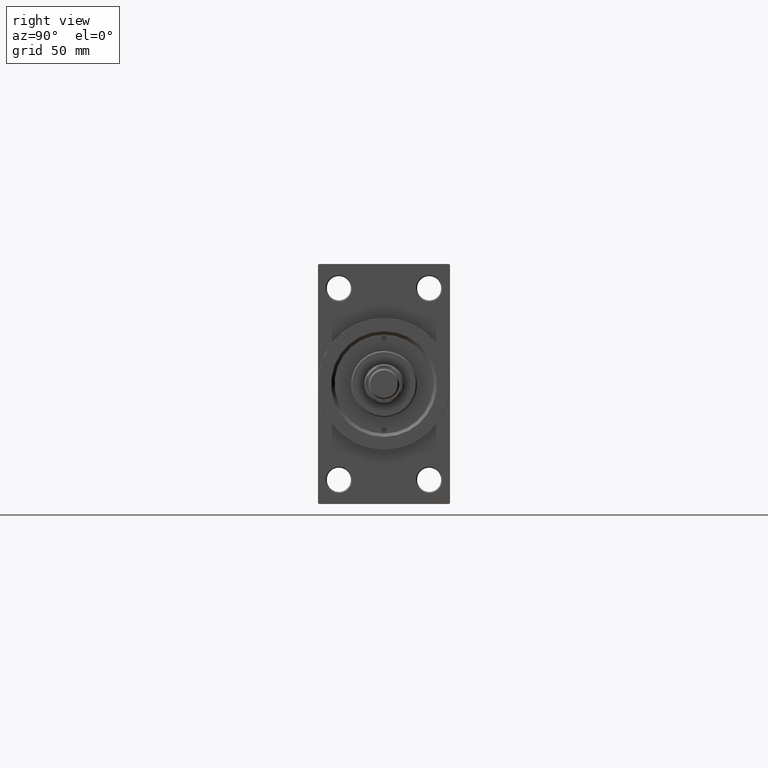
[diagram: clean part render]
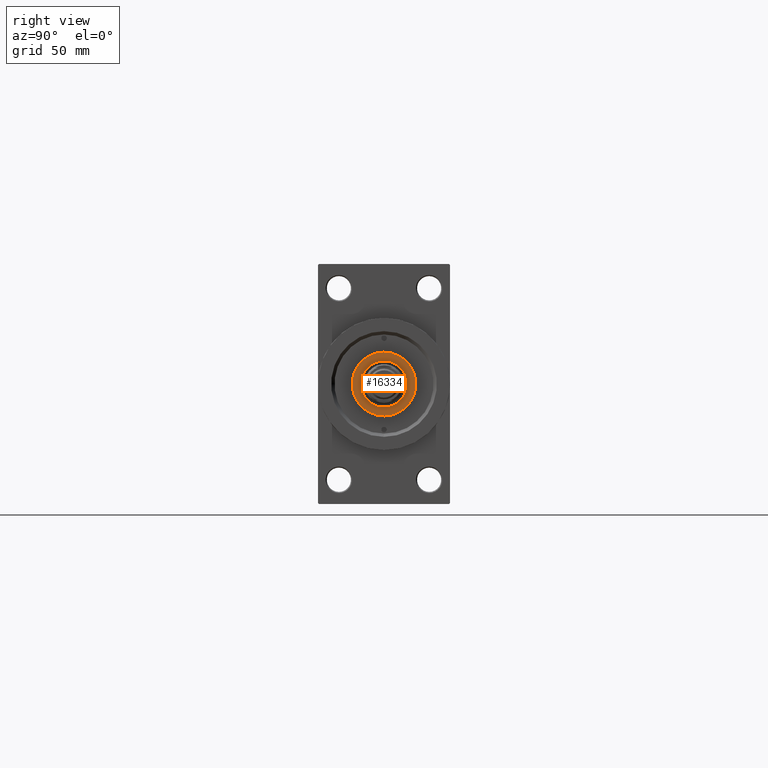
[diagram: same view with one face highlighted and labeled with its STEP entity id]
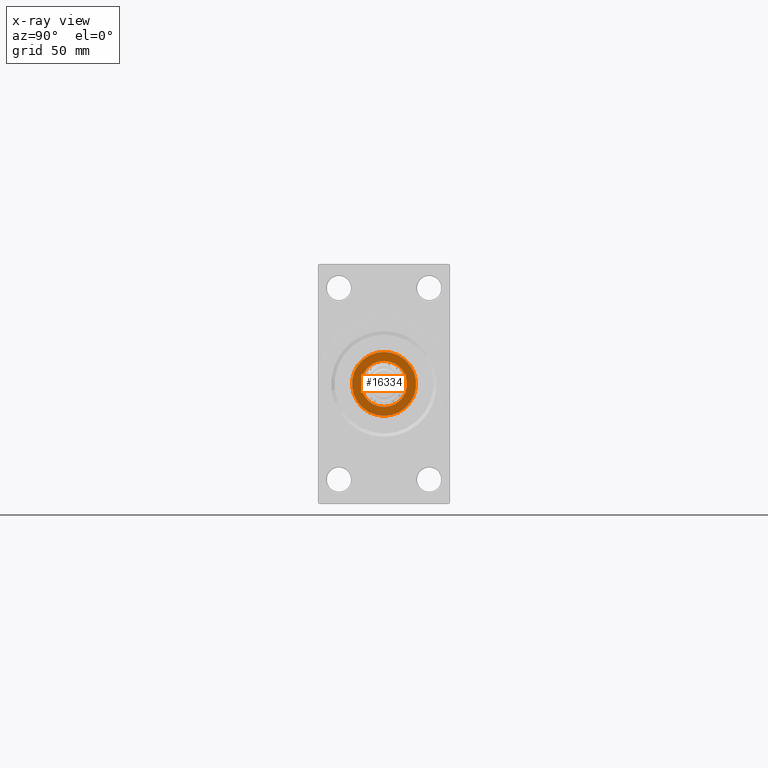
[diagram: x-ray of the same camera — body ghosted, the highlighted face saturated]
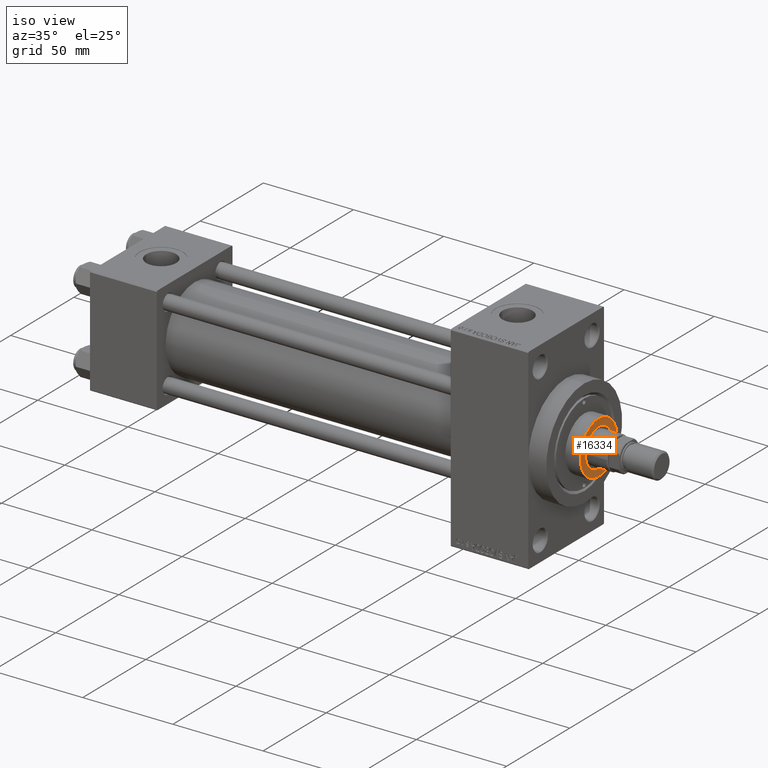
[diagram: same view with one face highlighted and labeled with its STEP entity id]
A machine part, right view. The second image highlights one B-rep face of the part: STEP entity #16334.
The next image is the same camera in x-ray: the body ghosted, the highlighted face saturated — about 0% of this face is hidden behind the body in this view.
A second angle (iso view) of the same face is appended — the face is thin or edge-on in the first view.
In plain terms, the highlighted planar face has unit normal (1, -0, -0).
Its self-contained STEP definition (entity closure, byte-faithful):
#1338 = FACE_OUTER_BOUND ( 'NONE', #46885, .T. ) ;
#1600 = ORIENTED_EDGE ( 'NONE', *, *, #9106, .F. ) ;
#1741 = DIRECTION ( 'NONE',  ( 1.000000000000000000, 0.000000000000000000, 0.000000000000000000 ) ) ;
#4489 = DIRECTION ( 'NONE',  ( 0.000000000000000000, 0.000000000000000000, 1.000000000000000000 ) ) ;
#4559 = DIRECTION ( 'NONE',  ( 1.000000000000000000, 0.000000000000000000, 0.000000000000000000 ) ) ;
#5129 = DIRECTION ( 'NONE',  ( 0.000000000000000000, 0.000000000000000000, 1.000000000000000000 ) ) ;
#6200 = AXIS2_PLACEMENT_3D ( 'NONE', #16355, #4489, #16121 ) ;
#7406 = VERTEX_POINT ( 'NONE', #25538 ) ;
#7665 = DIRECTION ( 'NONE',  ( 1.000000000000000000, 0.000000000000000000, 0.000000000000000000 ) ) ;
#8368 = PLANE ( 'NONE',  #6200 ) ;
#9106 = EDGE_CURVE ( 'NONE', #25038, #7406, #31942, .T. ) ;
#9120 = ORIENTED_EDGE ( 'NONE', *, *, #42861, .F. ) ;
#16093 = VERTEX_POINT ( 'NONE', #31421 ) ;
#16121 = DIRECTION ( 'NONE',  ( 1.000000000000000000, 0.000000000000000000, -0.000000000000000000 ) ) ;
#16334 = ADVANCED_FACE ( 'NONE', ( #34754, #1338 ), #8368, .T. ) ;
#16355 = CARTESIAN_POINT ( 'NONE',  ( 0.000000000000000000, 0.000000000000000000, 51.25999999999999801 ) ) ;
#18200 = DIRECTION ( 'NONE',  ( 1.000000000000000000, 0.000000000000000000, 0.000000000000000000 ) ) ;
#20679 = CIRCLE ( 'NONE', #33055, 14.49999999999999112 ) ;
#22922 = DIRECTION ( 'NONE',  ( 0.000000000000000000, 0.000000000000000000, 1.000000000000000000 ) ) ;
#24748 = CIRCLE ( 'NONE', #25513, 10.50000000000000000 ) ;
#25038 = VERTEX_POINT ( 'NONE', #35459 ) ;
#25513 = AXIS2_PLACEMENT_3D ( 'NONE', #37987, #41365, #4559 ) ;
#25538 = CARTESIAN_POINT ( 'NONE',  ( 10.50000000000000000, 0.000000000000000000, 51.25999999999999801 ) ) ;
#25571 = VERTEX_POINT ( 'NONE', #34632 ) ;
#31288 = CARTESIAN_POINT ( 'NONE',  ( 0.000000000000000000, 0.000000000000000000, 51.25999999999999801 ) ) ;
#31421 = CARTESIAN_POINT ( 'NONE',  ( 14.49999999999999112, 1.806354028742345013E-15, 51.25999999999999801 ) ) ;
#31942 = CIRCLE ( 'NONE', #47419, 10.50000000000000000 ) ;
#33055 = AXIS2_PLACEMENT_3D ( 'NONE', #40227, #40458, #18200 ) ;
#34483 = ORIENTED_EDGE ( 'NONE', *, *, #40559, .T. ) ;
#34632 = CARTESIAN_POINT ( 'NONE',  ( -14.49999999999999112, 0.000000000000000000, 51.25999999999999801 ) ) ;
#34754 = FACE_BOUND ( 'NONE', #40630, .T. ) ;
#35459 = CARTESIAN_POINT ( 'NONE',  ( -10.50000000000000000, 1.285879139104720831E-15, 51.25999999999999801 ) ) ;
#36261 = ORIENTED_EDGE ( 'NONE', *, *, #45627, .T. ) ;
#37987 = CARTESIAN_POINT ( 'NONE',  ( 0.000000000000000000, 0.000000000000000000, 51.25999999999999801 ) ) ;
#38963 = CIRCLE ( 'NONE', #45141, 14.49999999999999112 ) ;
#40227 = CARTESIAN_POINT ( 'NONE',  ( 0.000000000000000000, 0.000000000000000000, 51.25999999999999801 ) ) ;
#40458 = DIRECTION ( 'NONE',  ( 0.000000000000000000, 0.000000000000000000, 1.000000000000000000 ) ) ;
#40559 = EDGE_CURVE ( 'NONE', #16093, #25571, #20679, .T. ) ;
#40630 = EDGE_LOOP ( 'NONE', ( #9120, #1600 ) ) ;
#41308 = CARTESIAN_POINT ( 'NONE',  ( 0.000000000000000000, 0.000000000000000000, 51.25999999999999801 ) ) ;
#41365 = DIRECTION ( 'NONE',  ( 0.000000000000000000, 0.000000000000000000, 1.000000000000000000 ) ) ;
#42861 = EDGE_CURVE ( 'NONE', #7406, #25038, #24748, .T. ) ;
#45141 = AXIS2_PLACEMENT_3D ( 'NONE', #31288, #5129, #1741 ) ;
#45627 = EDGE_CURVE ( 'NONE', #25571, #16093, #38963, .T. ) ;
#46885 = EDGE_LOOP ( 'NONE', ( #36261, #34483 ) ) ;
#47419 = AXIS2_PLACEMENT_3D ( 'NONE', #41308, #22922, #7665 ) ;